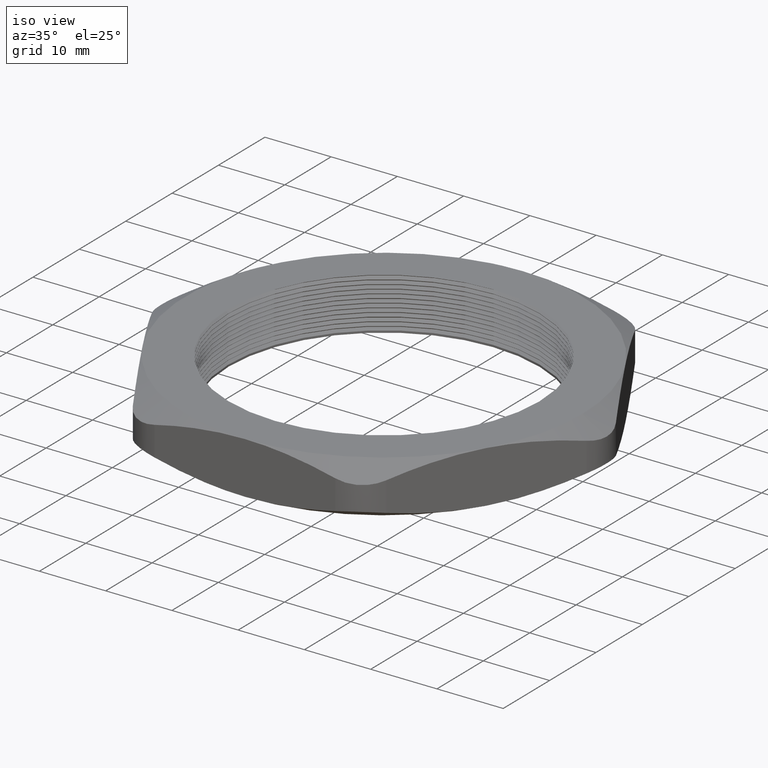
[diagram: clean part render]
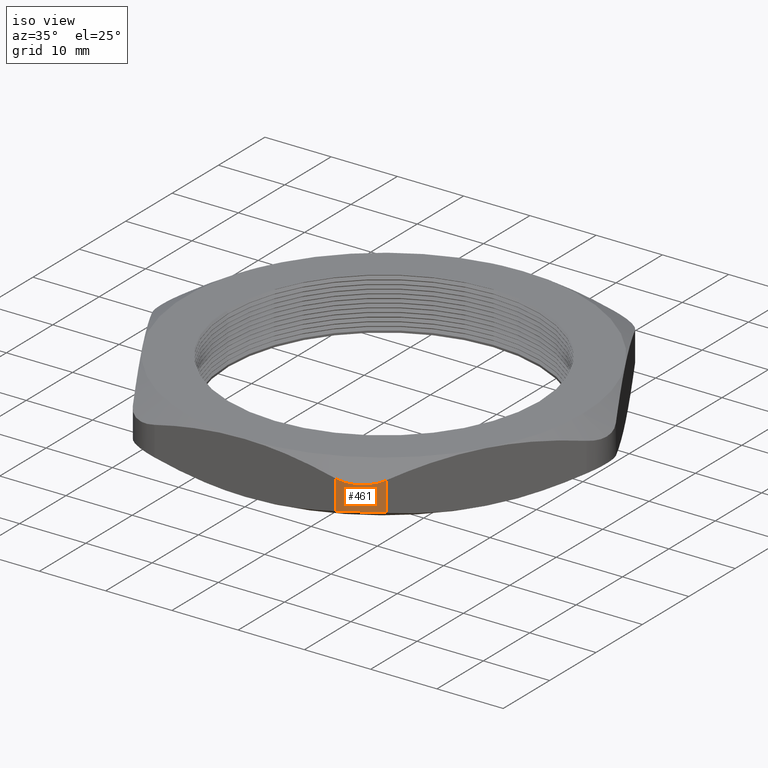
[diagram: same view with one face highlighted and labeled with its STEP entity id]
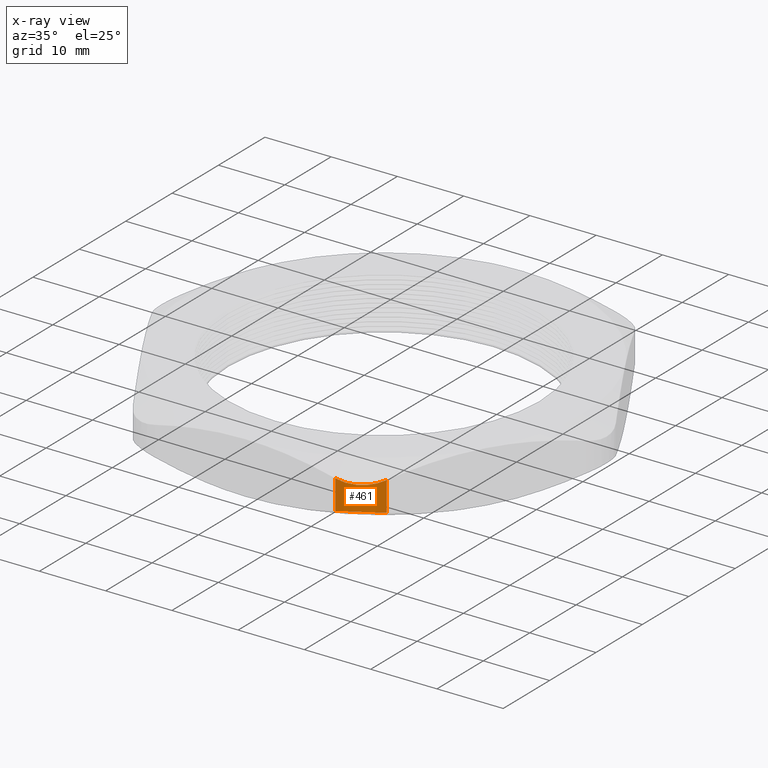
[diagram: x-ray of the same camera — body ghosted, the highlighted face saturated]
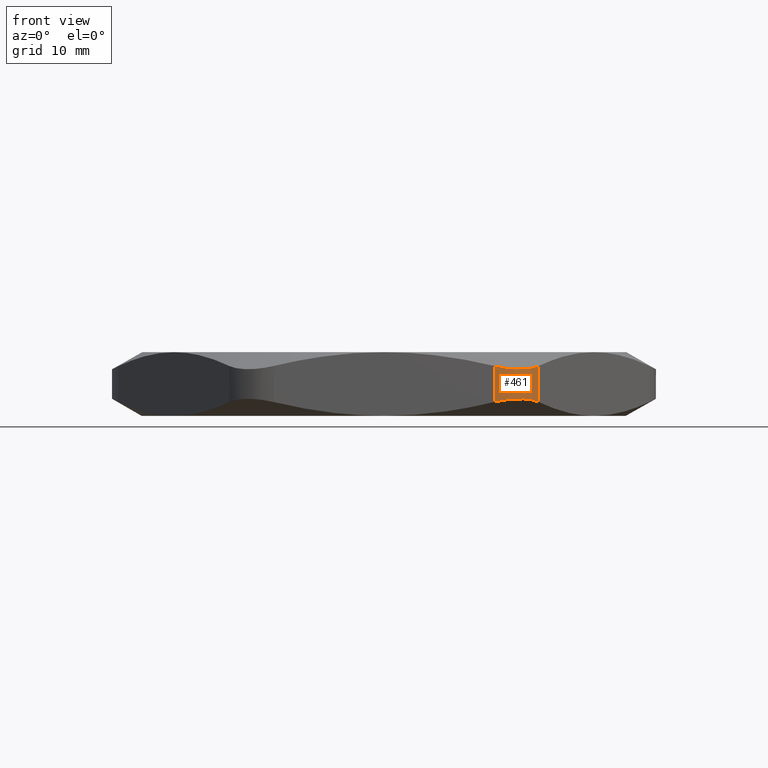
[diagram: same view with one face highlighted and labeled with its STEP entity id]
A machine part, iso view. The second image highlights one B-rep face of the part: STEP entity #461.
The next image is the same camera in x-ray: the body ghosted, the highlighted face saturated — about 0% of this face is hidden behind the body in this view.
A second angle (front view) of the same face is appended — the face is thin or edge-on in the first view.
In plain terms, the highlighted cylindrical surface (partial cylindrical patch) has radius 6.35 mm, axis along (0, 0, -1).
Its self-contained STEP definition (entity closure, byte-faithful):
#1 = EDGE_CURVE ( 'NONE', #3, #86, #610, .T. ) ;
#3 = VERTEX_POINT ( 'NONE', #606 ) ;
#35 = EDGE_CURVE ( 'NONE', #239, #3, #712, .T. ) ;
#86 = VERTEX_POINT ( 'NONE', #836 ) ;
#235 = VERTEX_POINT ( 'NONE', #1146 ) ;
#238 = EDGE_CURVE ( 'NONE', #235, #239, #1190, .T. ) ;
#239 = VERTEX_POINT ( 'NONE', #1201 ) ;
#339 = EDGE_CURVE ( 'NONE', #86, #235, #1409, .T. ) ;
#461 = ADVANCED_FACE ( 'NONE', ( #1633 ), #1632, .T. ) ;
#462 = EDGE_LOOP ( 'NONE', ( #463, #464, #465, #466 ) ) ;
#463 = ORIENTED_EDGE ( 'NONE', *, *, #35, .F. ) ;
#464 = ORIENTED_EDGE ( 'NONE', *, *, #238, .F. ) ;
#465 = ORIENTED_EDGE ( 'NONE', *, *, #339, .F. ) ;
#466 = ORIENTED_EDGE ( 'NONE', *, *, #1, .F. ) ;
#606 = CARTESIAN_POINT ( 'NONE',  ( 0.7534421012924617000, -1.054999999999999700, 0.2427859541343050100 ) ) ;
#607 = DIRECTION ( 'NONE',  ( 0.0000000000000000000, 0.0000000000000000000, -1.000000000000000000 ) ) ;
#608 = VECTOR ( 'NONE', #607, 39.37007874015748100 ) ;
#609 = CARTESIAN_POINT ( 'NONE',  ( 0.7534421012924617000, -1.054999999999999700, 0.3100000000000000000 ) ) ;
#610 = LINE ( 'NONE', #609, #608 ) ;
#694 = CARTESIAN_POINT ( 'NONE',  ( 0.7534421012924617000, -1.054999999999999700, 0.2427859541343050100 ) ) ;
#695 = CARTESIAN_POINT ( 'NONE',  ( 0.7426406280276902600, -1.073708700491182100, 0.2376202493319564400 ) ) ;
#696 = CARTESIAN_POINT ( 'NONE',  ( 0.7292618027920844100, -1.091195033875053800, 0.2336283984944734800 ) ) ;
#697 = CARTESIAN_POINT ( 'NONE',  ( 0.7062144216875245700, -1.114290582444686700, 0.2296370671020661300 ) ) ;
#698 = CARTESIAN_POINT ( 'NONE',  ( 0.6980114634144938300, -1.121510473299437200, 0.2286275982255481200 ) ) ;
#699 = CARTESIAN_POINT ( 'NONE',  ( 0.6805205885013933000, -1.134951313671748600, 0.2272701564282438900 ) ) ;
#700 = CARTESIAN_POINT ( 'NONE',  ( 0.6712656668977312600, -1.141129690300331200, 0.2269317070438220100 ) ) ;
#701 = CARTESIAN_POINT ( 'NONE',  ( 0.6522617552205256500, -1.152081483259582700, 0.2269398675414508500 ) ) ;
#702 = CARTESIAN_POINT ( 'NONE',  ( 0.6424447765496058600, -1.156909620522816700, 0.2272802097087082100 ) ) ;
#703 = CARTESIAN_POINT ( 'NONE',  ( 0.6221819559806112100, -1.165272639550648300, 0.2286349243502647200 ) ) ;
#704 = CARTESIAN_POINT ( 'NONE',  ( 0.6116474606707503800, -1.168826090778309200, 0.2296625828566580000 ) ) ;
#705 = CARTESIAN_POINT ( 'NONE',  ( 0.5799181923317212600, -1.177247800526430000, 0.2336981853431920300 ) ) ;
#706 = CARTESIAN_POINT ( 'NONE',  ( 0.5585335758802321100, -1.179999999999999300, 0.2376214738663903500 ) ) ;
#707 = CARTESIAN_POINT ( 'NONE',  ( 0.5369357503463519900, -1.179999999999999700, 0.2427859541343048700 ) ) ;
#712 = B_SPLINE_CURVE_WITH_KNOTS ( 'NONE', 3,
 ( #707, #706, #705, #704, #703, #702, #701, #700, #699, #698, #697, #696, #695, #694 ),
 .UNSPECIFIED., .F., .F.,
 ( 4, 2, 2, 2, 2, 2, 4 ),
 ( 0.0000000000000000000, 0.001669271586080330300, 0.002503907379120495500, 0.003338543172160660500, 0.004173178965200826000, 0.005007814758240991000, 0.006677086344321321100 ),
 .UNSPECIFIED. ) ;
#836 = CARTESIAN_POINT ( 'NONE',  ( 0.7534421012924617000, -1.054999999999999500, 0.06721404586569503000 ) ) ;
#1146 = CARTESIAN_POINT ( 'NONE',  ( 0.5369357503463518800, -1.179999999999999700, 0.06721404586569509900 ) ) ;
#1187 = DIRECTION ( 'NONE',  ( 0.0000000000000000000, 0.0000000000000000000, 1.000000000000000000 ) ) ;
#1188 = VECTOR ( 'NONE', #1187, 39.37007874015748100 ) ;
#1189 = CARTESIAN_POINT ( 'NONE',  ( 0.5369357503463519900, -1.179999999999999700, 0.3100000000000000000 ) ) ;
#1190 = LINE ( 'NONE', #1189, #1188 ) ;
#1201 = CARTESIAN_POINT ( 'NONE',  ( 0.5369357503463519900, -1.179999999999999700, 0.2427859541343048700 ) ) ;
#1393 = CARTESIAN_POINT ( 'NONE',  ( 0.5369357503463518800, -1.179999999999999700, 0.06721404586569509900 ) ) ;
#1394 = CARTESIAN_POINT ( 'NONE',  ( 0.5585386968758961900, -1.180000000000000400, 0.07237975066804353000 ) ) ;
#1395 = CARTESIAN_POINT ( 'NONE',  ( 0.5803717184231759200, -1.177156764165109100, 0.07637160150552646500 ) ) ;
#1396 = CARTESIAN_POINT ( 'NONE',  ( 0.6118967407510950100, -1.168744920922675500, 0.08036293289793382300 ) ) ;
#1397 = CARTESIAN_POINT ( 'NONE',  ( 0.6222508287803751900, -1.165250896099422800, 0.08137240177445202700 ) ) ;
#1398 = CARTESIAN_POINT ( 'NONE',  ( 0.6426363754475589200, -1.156823774276417600, 0.08272984357175616800 ) ) ;
#1399 = CARTESIAN_POINT ( 'NONE',  ( 0.6526144673638906200, -1.151897965371903700, 0.08306829295617802800 ) ) ;
#1400 = CARTESIAN_POINT ( 'NONE',  ( 0.6716009541221927800, -1.140915991567793600, 0.08306013245854915200 ) ) ;
#1401 = CARTESIAN_POINT ( 'NONE',  ( 0.6806907329805717000, -1.134828307281984000, 0.08271979029129175600 ) ) ;
#1402 = CARTESIAN_POINT ( 'NONE',  ( 0.6980647301955035200, -1.121461699430824600, 0.08136507564973526100 ) ) ;
#1403 = CARTESIAN_POINT ( 'NONE',  ( 0.7064093568846974100, -1.114115284490268000, 0.08033741714334205500 ) ) ;
#1404 = CARTESIAN_POINT ( 'NONE',  ( 0.7295674056393840500, -1.090847786939236100, 0.07630181465680792300 ) ) ;
#1405 = CARTESIAN_POINT ( 'NONE',  ( 0.7426431885255216900, -1.073704265578844000, 0.07237852613360946900 ) ) ;
#1406 = CARTESIAN_POINT ( 'NONE',  ( 0.7534421012924617000, -1.054999999999999500, 0.06721404586569503000 ) ) ;
#1409 = B_SPLINE_CURVE_WITH_KNOTS ( 'NONE', 3,
 ( #1406, #1405, #1404, #1403, #1402, #1401, #1400, #1399, #1398, #1397, #1396, #1395, #1394, #1393 ),
 .UNSPECIFIED., .F., .F.,
 ( 4, 2, 2, 2, 2, 2, 4 ),
 ( 4.925667812690175100E-018, 0.001669271586080329800, 0.002503907379120495500, 0.003338543172160661800, 0.004173178965200828600, 0.005007814758240993600, 0.006677086344321323700 ),
 .UNSPECIFIED. ) ;
#1627 = DIRECTION ( 'NONE',  ( -1.000000000000000000, 0.0000000000000000000, 0.0000000000000000000 ) ) ;
#1628 = DIRECTION ( 'NONE',  ( 0.0000000000000000000, 0.0000000000000000000, -1.000000000000000000 ) ) ;
#1629 = CARTESIAN_POINT ( 'NONE',  ( 0.5369357503463519900, -0.9299999999999996000, 0.3100000000000000000 ) ) ;
#1630 = AXIS2_PLACEMENT_3D ( 'NONE', #1629, #1628, #1627 ) ;
#1632 = CYLINDRICAL_SURFACE ( 'NONE', #1630, 0.2500000000000000000 ) ;
#1633 = FACE_OUTER_BOUND ( 'NONE', #462, .T. ) ;